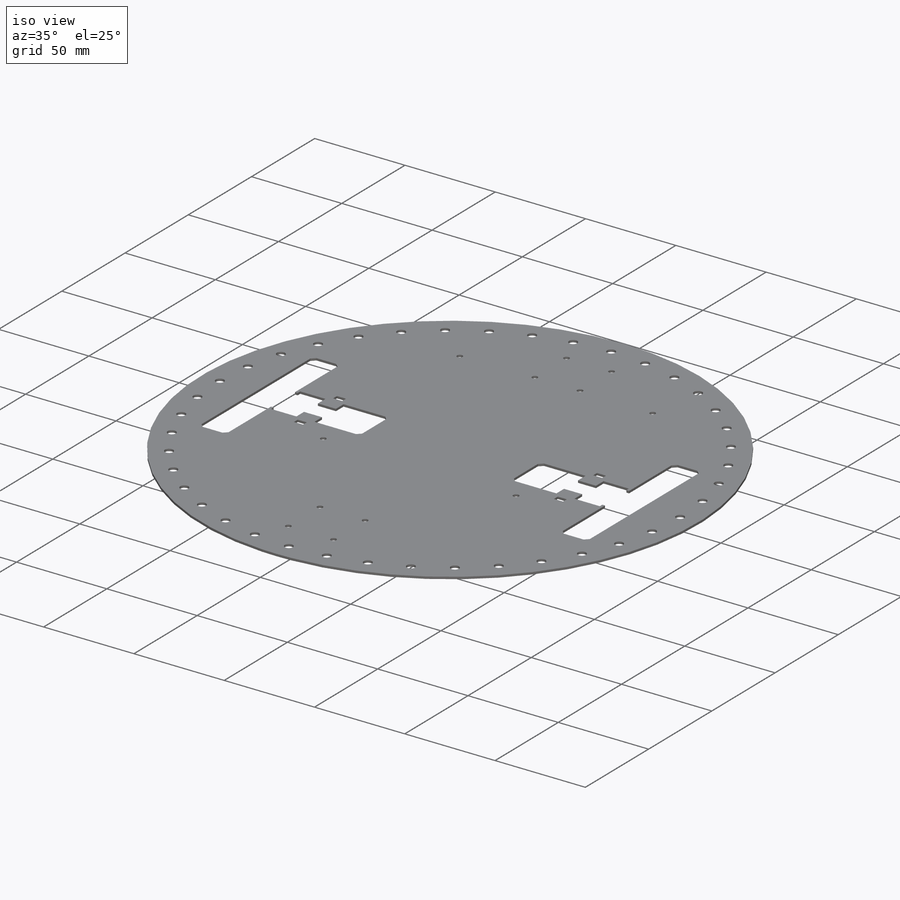
[diagram: iso view]
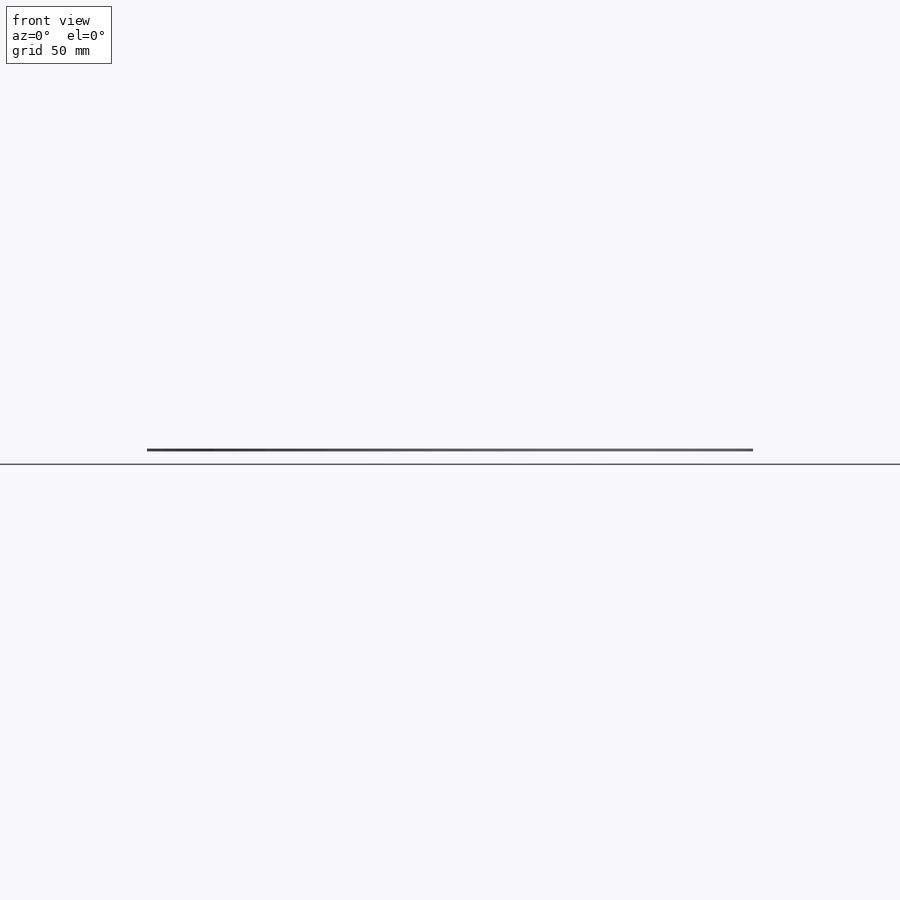
[diagram: front view]
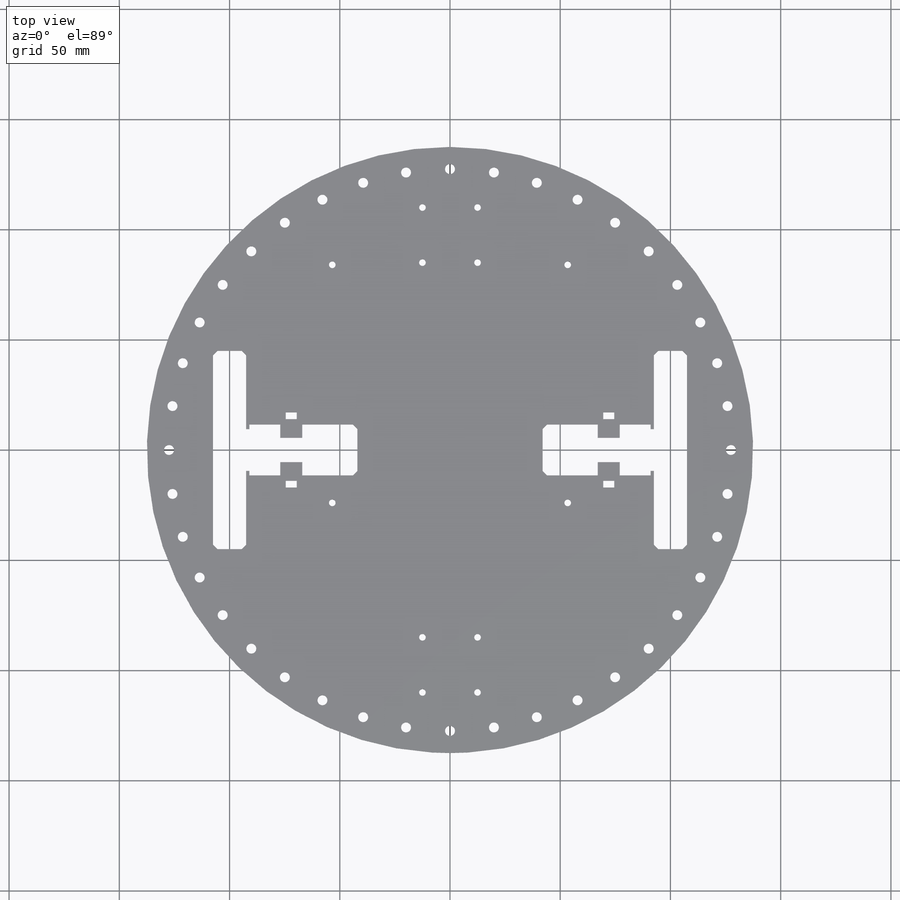
[diagram: top view]
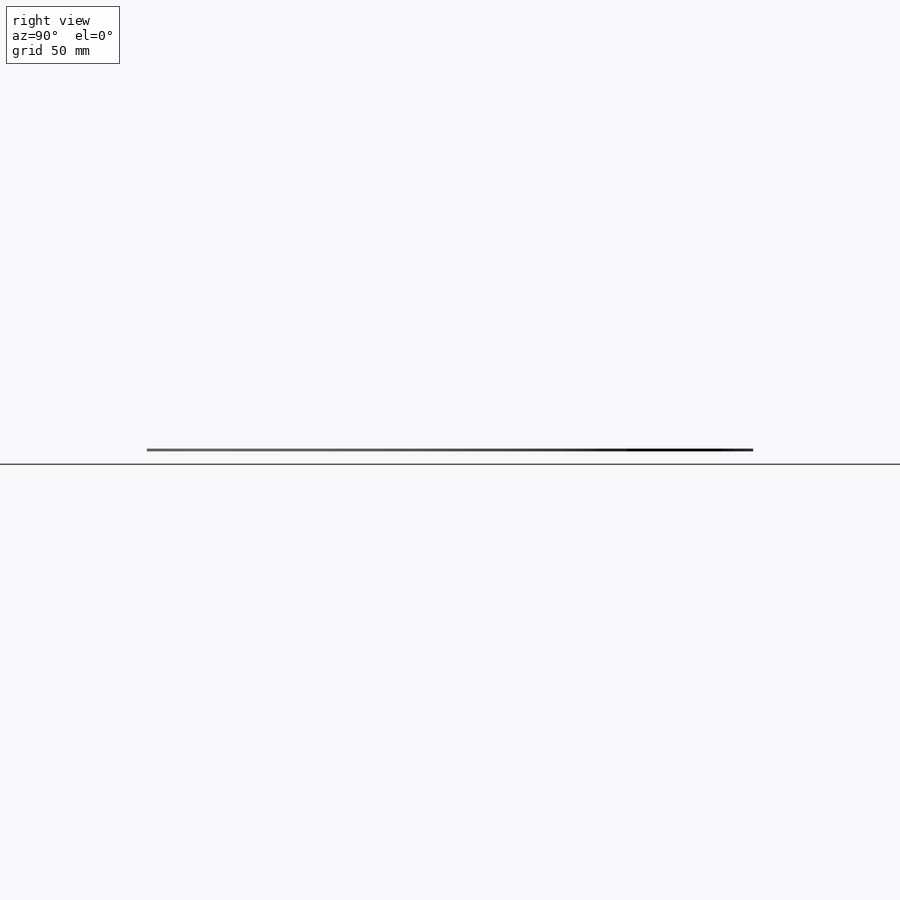
[diagram: right view]
SOLIDWORKS PART (.sldprt)
format: sldprt  version: not decoded by parser v0  size: 425,472 bytes
history: native  units: mm
features: sketch x6, cut_extrude x5, material x1, extrude x1 (+11 scaffold rows collapsed)
feature tree (24):
  scaffold x11  (default folders/planes/origin — collapsed)
  material  "Material <not specified>"
  sketch  "Sketch1"  dims[D1=275.0mm]
  extrude  "Boss-Extrude1"  Depth=1.2mm
  sketch  "Sketch3"  dims[c1.D1=4.5mm c1.D2=130.0mm c1.D3=20.0mm c2.D2=40.0]
  cut_extrude  "Cut-Extrude1"  [1 undecoded]
  sketch  "Sketch4"  dims[c1.D1=20.0mm c1.D2=80.0mm c1.D3=95.0mm c1.D4=35.0mm c1.D5=30.0mm c2.D1=15.0mm c2.D2=80.0mm c2.D3=100.0mm c2.D4=~9.379019mm c3.D1=80.0mm c3.D2=15.0mm c3.D3=100.0mm c3.D4=23.0mm c3.D5=6.0mm c3.D6=14.0mm c3.D7=10.0mm c3.D8=32.0mm c4.D1=90.0mm c4.D2=15.0mm c4.D3=100.0mm c4.D4=1.5mm c4.D5=2.0mm c4.D6=14.0mm c4.D7=23.0mm c4.D8=6.0mm c4.D9=10.0mm c4.D10=35.0mm]
  cut_extrude  "Cut-Extrude2"  Depth=1.2mm
  sketch  "Sketch5"  dims[D3=3.0mm D1=106.8mm D2=108.0mm D4=30.0mm]
  cut_extrude  "Cut-Extrude3"  [1 undecoded]
  sketch  "Sketch6"  dims[D1=3.0mm D2=25.0mm D3=40.0mm]
  cut_extrude  "Cut-Extrude4"  [1 undecoded]
  sketch  "Sketch7"  dims[D1=5.0mm D2=3.0mm D3=10.0mm]
  cut_extrude  "Cut-Extrude5"  [1 undecoded]
decode coverage: 8 of 12 modeling features carry decoded parameters
note: ~ marks probable driven/reference dimensions
note: 4 parameter values undecoded
summary: no parameter record found for 4 features
note: suppression state not decoded; provenance and decode notes live in map.json
